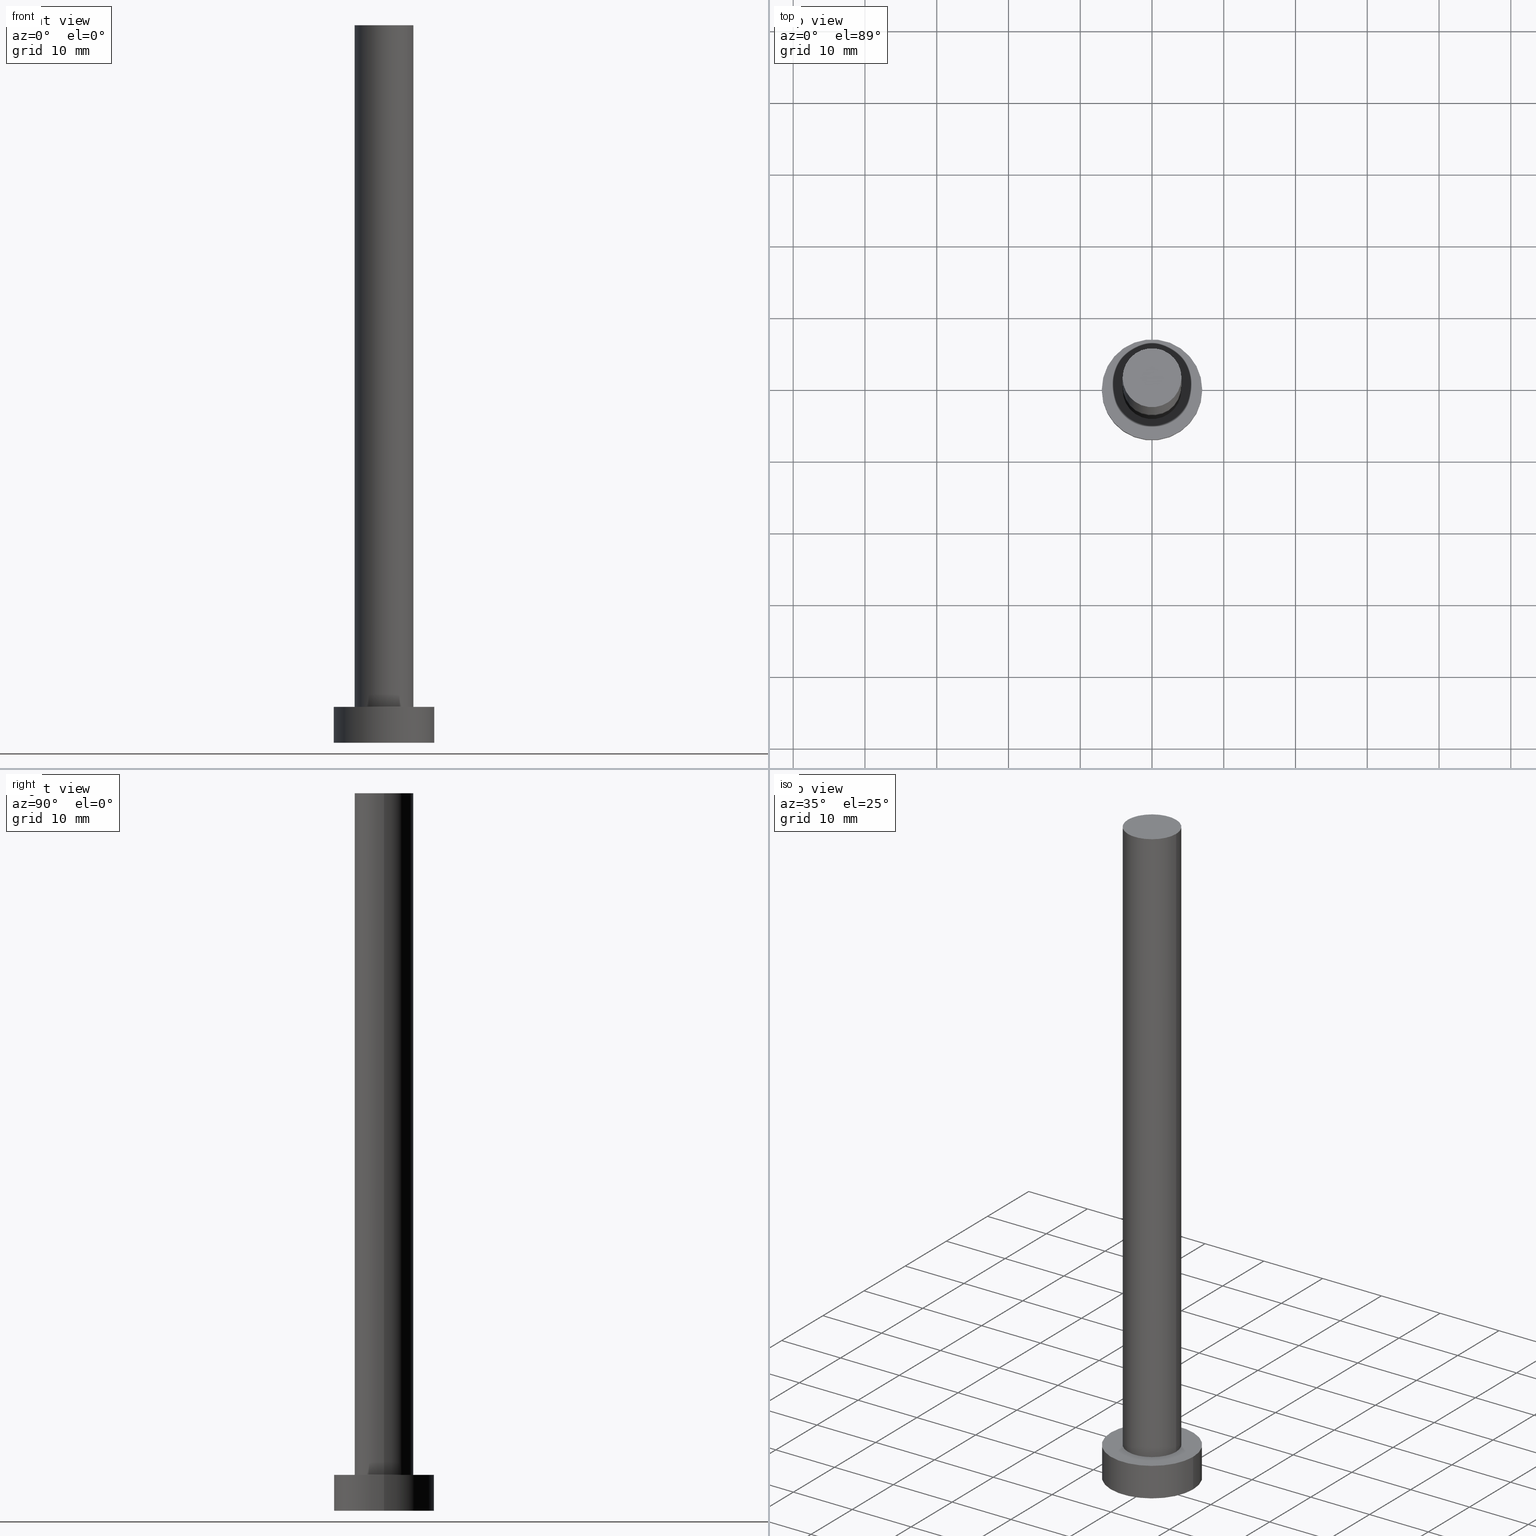
[diagram: canonical four-view strip — front | top / right | iso, engineering-drawing reading convention]
A machine part, canonical four-view strip (front | top / right | iso — engineering-drawing reading convention). The complete STEP part file that produces these views, byte-faithful:
ISO-10303-21;
HEADER;
FILE_DESCRIPTION (( 'STEP AP203' ),
    '1' );
FILE_NAME ('a311.STEP',
    '2023-02-13T14:21:59',
    ( '' ),
    ( '' ),
    'SwSTEP 2.0',
    'SolidWorks 2019',
    '' );
FILE_SCHEMA (( 'CONFIG_CONTROL_DESIGN' ));
ENDSEC;

DATA;
#1 = DIRECTION ( 'NONE',  ( 1.000000000000000000, 0.000000000000000000, 0.000000000000000000 ) ) ;
#2 = CC_DESIGN_PERSON_AND_ORGANIZATION_ASSIGNMENT ( #94, #121, ( #39 ) ) ;
#3 = SHAPE_DEFINITION_REPRESENTATION ( #150, #42 ) ;
#4 = PLANE ( 'NONE',  #255 ) ;
#5 = ORIENTED_EDGE ( 'NONE', *, *, #87, .F. ) ;
#6 = DIRECTION ( 'NONE',  ( 0.000000000000000000, 0.000000000000000000, 1.000000000000000000 ) ) ;
#7 = APPROVAL_ROLE ( '' ) ;
#8 = AXIS2_PLACEMENT_3D ( 'NONE', #223, #135, #177 ) ;
#9 = CYLINDRICAL_SURFACE ( 'NONE', #61, 7.000000000000000000 ) ;
#10 = ORIENTED_EDGE ( 'NONE', *, *, #232, .T. ) ;
#11 = APPROVAL_STATUS ( 'not_yet_approved' ) ;
#12 = DATE_AND_TIME ( #252, #33 ) ;
#13 = VERTEX_POINT ( 'NONE', #27 ) ;
#14 = VECTOR ( 'NONE', #210, 1000.000000000000000 ) ;
#15 = AXIS2_PLACEMENT_3D ( 'NONE', #142, #197, #124 ) ;
#16 = DIRECTION ( 'NONE',  ( -1.000000000000000000, 0.000000000000000000, 0.000000000000000000 ) ) ;
#17 = CC_DESIGN_APPROVAL ( #176, ( #235 ) ) ;
#18 = PLANE ( 'NONE',  #56 ) ;
#19 = ORIENTED_EDGE ( 'NONE', *, *, #72, .F. ) ;
#20 = DATE_TIME_ROLE ( 'classification_date' ) ;
#21 = COORDINATED_UNIVERSAL_TIME_OFFSET ( 1, 0, .AHEAD. ) ;
#22 = CIRCLE ( 'NONE', #125, 4.099999999999999645 ) ;
#23 = DIRECTION ( 'NONE',  ( 0.000000000000000000, 0.000000000000000000, 1.000000000000000000 ) ) ;
#24 = ORIENTED_EDGE ( 'NONE', *, *, #54, .T. ) ;
#25 = DIRECTION ( 'NONE',  ( -1.000000000000000000, 0.000000000000000000, 0.000000000000000000 ) ) ;
#26 = AXIS2_PLACEMENT_3D ( 'NONE', #138, #201, #25 ) ;
#27 = CARTESIAN_POINT ( 'NONE',  ( 4.099999999999999645, 5.021051876504147385E-16, 5.000000000000000000 ) ) ;
#28 = AXIS2_PLACEMENT_3D ( 'NONE', #182, #166, #167 ) ;
#29 = CARTESIAN_POINT ( 'NONE',  ( -7.000000000000000000, 0.000000000000000000, 5.000000000000000000 ) ) ;
#30 = APPLICATION_CONTEXT ( 'configuration controlled 3d designs of mechanical parts and assemblies' ) ;
#31 = PRODUCT_RELATED_PRODUCT_CATEGORY ( 'detail', '', ( #39 ) ) ;
#32 = ORIENTED_EDGE ( 'NONE', *, *, #108, .T. ) ;
#33 = LOCAL_TIME ( 15, 21, 59.00000000000000000, #77 ) ;
#34 = PERSON_AND_ORGANIZATION_ROLE ( 'creator' ) ;
#35 = PERSON_AND_ORGANIZATION ( #68, #229 ) ;
#36 = EDGE_LOOP ( 'NONE', ( #208, #153, #216, #10 ) ) ;
#37 = APPROVAL_STATUS ( 'not_yet_approved' ) ;
#38 = CLOSED_SHELL ( 'NONE', ( #254, #180, #183, #100, #179, #59, #225 ) ) ;
#39 = PRODUCT ( 'a311', 'a311', '', ( #88 ) ) ;
#40 = CARTESIAN_POINT ( 'NONE',  ( 0.000000000000000000, 0.000000000000000000, 5.000000000000000000 ) ) ;
#41 = CARTESIAN_POINT ( 'NONE',  ( -7.000000000000000000, 0.000000000000000000, 0.000000000000000000 ) ) ;
#42 = ADVANCED_BREP_SHAPE_REPRESENTATION ( 'a311', ( #128, #86 ), #144 ) ;
#43 = PERSON_AND_ORGANIZATION ( #68, #229 ) ;
#44 = APPROVAL_DATE_TIME ( #134, #101 ) ;
#45 = CC_DESIGN_DATE_AND_TIME_ASSIGNMENT ( #112, #178, ( #189 ) ) ;
#46 = ORIENTED_EDGE ( 'NONE', *, *, #232, .F. ) ;
#47 = CARTESIAN_POINT ( 'NONE',  ( 0.000000000000000000, 0.000000000000000000, 0.000000000000000000 ) ) ;
#48 = DIRECTION ( 'NONE',  ( 1.000000000000000000, 0.000000000000000000, -0.000000000000000000 ) ) ;
#49 = LOCAL_TIME ( 15, 21, 59.00000000000000000, #21 ) ;
#50 = CYLINDRICAL_SURFACE ( 'NONE', #212, 4.099999999999999645 ) ;
#51 = FACE_OUTER_BOUND ( 'NONE', #36, .T. ) ;
#52 = ORIENTED_EDGE ( 'NONE', *, *, #170, .T. ) ;
#53 = DIRECTION ( 'NONE',  ( 0.000000000000000000, 0.000000000000000000, 1.000000000000000000 ) ) ;
#54 = EDGE_CURVE ( 'NONE', #122, #89, #244, .T. ) ;
#55 = APPLICATION_PROTOCOL_DEFINITION ( 'international standard', 'config_control_design', 1994, #30 ) ;
#56 = AXIS2_PLACEMENT_3D ( 'NONE', #238, #160, #237 ) ;
#57 = EDGE_CURVE ( 'NONE', #222, #81, #82, .T. ) ;
#58 = ORIENTED_EDGE ( 'NONE', *, *, #152, .T. ) ;
#59 = ADVANCED_FACE ( 'NONE', ( #51 ), #50, .T. ) ;
#60 = APPROVAL_STATUS ( 'not_yet_approved' ) ;
#61 = AXIS2_PLACEMENT_3D ( 'NONE', #80, #240, #116 ) ;
#62 = CARTESIAN_POINT ( 'NONE',  ( 0.000000000000000000, 0.000000000000000000, 5.000000000000000000 ) ) ;
#63 = DIRECTION ( 'NONE',  ( -0.000000000000000000, -0.000000000000000000, -1.000000000000000000 ) ) ;
#64 = APPROVAL_DATE_TIME ( #163, #176 ) ;
#65 = CC_DESIGN_PERSON_AND_ORGANIZATION_ASSIGNMENT ( #146, #34, ( #189 ) ) ;
#66 = DIRECTION ( 'NONE',  ( 1.000000000000000000, 0.000000000000000000, 0.000000000000000000 ) ) ;
#67 = CYLINDRICAL_SURFACE ( 'NONE', #26, 7.000000000000000000 ) ;
#68 = PERSON ( 'NEUR�EN�', 'NEUR�EN�', 'NEUR�EN�', ('NEUR�EN�'), ('NEUR�EN�'), ('NEUR�EN�') ) ;
#69 = PLANE ( 'NONE',  #157 ) ;
#70 = EDGE_CURVE ( 'NONE', #89, #253, #243, .T. ) ;
#71 = APPROVAL_PERSON_ORGANIZATION ( #194, #101, #161 ) ;
#72 = EDGE_CURVE ( 'NONE', #81, #92, #224, .T. ) ;
#73 = FACE_OUTER_BOUND ( 'NONE', #155, .T. ) ;
#74 = CC_DESIGN_SECURITY_CLASSIFICATION ( #191, ( #235 ) ) ;
#75 = DIRECTION ( 'NONE',  ( 1.000000000000000000, 0.000000000000000000, -0.000000000000000000 ) ) ;
#76 = CC_DESIGN_DATE_AND_TIME_ASSIGNMENT ( #123, #20, ( #191 ) ) ;
#77 = COORDINATED_UNIVERSAL_TIME_OFFSET ( 1, 0, .AHEAD. ) ;
#78 = CC_DESIGN_APPROVAL ( #101, ( #191 ) ) ;
#79 = ORIENTED_EDGE ( 'NONE', *, *, #87, .T. ) ;
#80 = CARTESIAN_POINT ( 'NONE',  ( 0.000000000000000000, 0.000000000000000000, 5.000000000000000000 ) ) ;
#81 = VERTEX_POINT ( 'NONE', #29 ) ;
#82 = CIRCLE ( 'NONE', #228, 7.000000000000000000 ) ;
#83 = EDGE_LOOP ( 'NONE', ( #5, #230, #162, #58 ) ) ;
#84 = APPROVAL_PERSON_ORGANIZATION ( #96, #176, #7 ) ;
#85 = CARTESIAN_POINT ( 'NONE',  ( -4.099999999999999645, 0.000000000000000000, 5.000000000000000000 ) ) ;
#86 = AXIS2_PLACEMENT_3D ( 'NONE', #251, #105, #172 ) ;
#87 = EDGE_CURVE ( 'NONE', #222, #214, #102, .T. ) ;
#88 = MECHANICAL_CONTEXT ( 'NONE', #30, 'mechanical' ) ;
#89 = VERTEX_POINT ( 'NONE', #234 ) ;
#90 = EDGE_LOOP ( 'NONE', ( #113, #218 ) ) ;
#91 = EDGE_LOOP ( 'NONE', ( #52, #24 ) ) ;
#92 = VERTEX_POINT ( 'NONE', #41 ) ;
#93 = DIRECTION ( 'NONE',  ( 0.000000000000000000, 0.000000000000000000, 1.000000000000000000 ) ) ;
#94 = PERSON_AND_ORGANIZATION ( #68, #229 ) ;
#95 = ORIENTED_EDGE ( 'NONE', *, *, #70, .F. ) ;
#96 = PERSON_AND_ORGANIZATION ( #68, #229 ) ;
#97 = FACE_OUTER_BOUND ( 'NONE', #83, .T. ) ;
#98 = VECTOR ( 'NONE', #145, 1000.000000000000000 ) ;
#99 = AXIS2_PLACEMENT_3D ( 'NONE', #109, #159, #66 ) ;
#100 = ADVANCED_FACE ( 'NONE', ( #168, #106 ), #18, .T. ) ;
#101 = APPROVAL ( #60, 'NEUR�EN�' ) ;
#102 = LINE ( 'NONE', #184, #14 ) ;
#103 = CARTESIAN_POINT ( 'NONE',  ( 0.000000000000000000, 0.000000000000000000, 100.0000000000000000 ) ) ;
#104 = ORIENTED_EDGE ( 'NONE', *, *, #108, .F. ) ;
#105 = DIRECTION ( 'NONE',  ( 0.000000000000000000, 0.000000000000000000, 1.000000000000000000 ) ) ;
#106 = FACE_OUTER_BOUND ( 'NONE', #90, .T. ) ;
#107 =( LENGTH_UNIT ( ) NAMED_UNIT ( * ) SI_UNIT ( .MILLI., .METRE. ) );
#108 = EDGE_CURVE ( 'NONE', #214, #92, #213, .T. ) ;
#109 = CARTESIAN_POINT ( 'NONE',  ( 0.000000000000000000, 0.000000000000000000, 5.000000000000000000 ) ) ;
#110 = DIRECTION ( 'NONE',  ( -0.000000000000000000, -0.000000000000000000, -1.000000000000000000 ) ) ;
#111 = VECTOR ( 'NONE', #63, 1000.000000000000000 ) ;
#112 = DATE_AND_TIME ( #211, #205 ) ;
#113 = ORIENTED_EDGE ( 'NONE', *, *, #188, .T. ) ;
#114 =( NAMED_UNIT ( * ) SI_UNIT ( $, .STERADIAN. ) SOLID_ANGLE_UNIT ( ) );
#115 = CALENDAR_DATE ( 2023, 13, 2 ) ;
#116 = DIRECTION ( 'NONE',  ( -1.000000000000000000, 0.000000000000000000, 0.000000000000000000 ) ) ;
#117 = ORIENTED_EDGE ( 'NONE', *, *, #192, .T. ) ;
#118 = VECTOR ( 'NONE', #206, 1000.000000000000000 ) ;
#119 = CIRCLE ( 'NONE', #15, 7.000000000000000000 ) ;
#120 = DIRECTION ( 'NONE',  ( 0.000000000000000000, 0.000000000000000000, 1.000000000000000000 ) ) ;
#121 = PERSON_AND_ORGANIZATION_ROLE ( 'design_owner' ) ;
#122 = VERTEX_POINT ( 'NONE', #140 ) ;
#123 = DATE_AND_TIME ( #219, #49 ) ;
#124 = DIRECTION ( 'NONE',  ( 1.000000000000000000, 0.000000000000000000, 0.000000000000000000 ) ) ;
#125 = AXIS2_PLACEMENT_3D ( 'NONE', #40, #23, #126 ) ;
#126 = DIRECTION ( 'NONE',  ( 1.000000000000000000, 0.000000000000000000, 0.000000000000000000 ) ) ;
#127 = APPROVAL ( #37, 'NEUR�EN�' ) ;
#128 = MANIFOLD_SOLID_BREP ( 'P�idat vysunut�m3', #38 ) ;
#129 = AXIS2_PLACEMENT_3D ( 'NONE', #193, #93, #1 ) ;
#130 = CARTESIAN_POINT ( 'NONE',  ( 0.000000000000000000, 0.000000000000000000, 100.0000000000000000 ) ) ;
#131 = CC_DESIGN_PERSON_AND_ORGANIZATION_ASSIGNMENT ( #239, #220, ( #235 ) ) ;
#132 = FACE_OUTER_BOUND ( 'NONE', #91, .T. ) ;
#133 = AXIS2_PLACEMENT_3D ( 'NONE', #130, #110, #16 ) ;
#134 = DATE_AND_TIME ( #236, #185 ) ;
#135 = DIRECTION ( 'NONE',  ( 0.000000000000000000, 0.000000000000000000, 1.000000000000000000 ) ) ;
#136 = PERSON_AND_ORGANIZATION ( #68, #229 ) ;
#137 = CARTESIAN_POINT ( 'NONE',  ( 0.000000000000000000, 0.000000000000000000, 100.0000000000000000 ) ) ;
#138 = CARTESIAN_POINT ( 'NONE',  ( 0.000000000000000000, 0.000000000000000000, 5.000000000000000000 ) ) ;
#139 = PERSON_AND_ORGANIZATION_ROLE ( 'creator' ) ;
#140 = CARTESIAN_POINT ( 'NONE',  ( 4.099999999999999645, 5.021051876504147385E-16, 100.0000000000000000 ) ) ;
#141 = EDGE_LOOP ( 'NONE', ( #241, #104 ) ) ;
#142 = CARTESIAN_POINT ( 'NONE',  ( 0.000000000000000000, 0.000000000000000000, 0.000000000000000000 ) ) ;
#143 = CC_DESIGN_PERSON_AND_ORGANIZATION_ASSIGNMENT ( #136, #139, ( #235 ) ) ;
#144 =( GEOMETRIC_REPRESENTATION_CONTEXT ( 3 ) GLOBAL_UNCERTAINTY_ASSIGNED_CONTEXT ( ( #147 ) ) GLOBAL_UNIT_ASSIGNED_CONTEXT ( ( #107, #231, #114 ) ) REPRESENTATION_CONTEXT ( 'NONE', 'WORKASPACE' ) );
#145 = DIRECTION ( 'NONE',  ( -0.000000000000000000, -0.000000000000000000, -1.000000000000000000 ) ) ;
#146 = PERSON_AND_ORGANIZATION ( #68, #229 ) ;
#147 = UNCERTAINTY_MEASURE_WITH_UNIT (LENGTH_MEASURE( 1.000000000000000082E-05 ), #107, 'distance_accuracy_value', 'NONE');
#148 = CARTESIAN_POINT ( 'NONE',  ( 0.000000000000000000, 0.000000000000000000, 5.000000000000000000 ) ) ;
#149 = APPLICATION_CONTEXT ( 'configuration controlled 3d designs of mechanical parts and assemblies' ) ;
#150 = PRODUCT_DEFINITION_SHAPE ( 'NONE', 'NONE',  #189 ) ;
#151 = CIRCLE ( 'NONE', #129, 4.099999999999999645 ) ;
#152 = EDGE_CURVE ( 'NONE', #92, #214, #119, .T. ) ;
#153 = ORIENTED_EDGE ( 'NONE', *, *, #170, .F. ) ;
#154 = LINE ( 'NONE', #174, #111 ) ;
#155 = EDGE_LOOP ( 'NONE', ( #156, #117, #171, #95 ) ) ;
#156 = ORIENTED_EDGE ( 'NONE', *, *, #54, .F. ) ;
#157 = AXIS2_PLACEMENT_3D ( 'NONE', #47, #6, #48 ) ;
#158 = COORDINATED_UNIVERSAL_TIME_OFFSET ( 1, 0, .AHEAD. ) ;
#159 = DIRECTION ( 'NONE',  ( 0.000000000000000000, 0.000000000000000000, 1.000000000000000000 ) ) ;
#160 = DIRECTION ( 'NONE',  ( 0.000000000000000000, 0.000000000000000000, 1.000000000000000000 ) ) ;
#161 = APPROVAL_ROLE ( '' ) ;
#162 = ORIENTED_EDGE ( 'NONE', *, *, #72, .T. ) ;
#163 = DATE_AND_TIME ( #115, #250 ) ;
#164 = DIRECTION ( 'NONE',  ( -0.000000000000000000, -0.000000000000000000, -1.000000000000000000 ) ) ;
#165 = CC_DESIGN_APPROVAL ( #127, ( #189 ) ) ;
#166 = DIRECTION ( 'NONE',  ( 0.000000000000000000, 0.000000000000000000, 1.000000000000000000 ) ) ;
#167 = DIRECTION ( 'NONE',  ( 1.000000000000000000, 0.000000000000000000, 0.000000000000000000 ) ) ;
#168 = FACE_BOUND ( 'NONE', #186, .T. ) ;
#169 = APPROVAL_DATE_TIME ( #12, #127 ) ;
#170 = EDGE_CURVE ( 'NONE', #89, #122, #151, .T. ) ;
#171 = ORIENTED_EDGE ( 'NONE', *, *, #247, .T. ) ;
#172 = DIRECTION ( 'NONE',  ( 1.000000000000000000, 0.000000000000000000, 0.000000000000000000 ) ) ;
#173 = CIRCLE ( 'NONE', #245, 4.099999999999999645 ) ;
#174 = CARTESIAN_POINT ( 'NONE',  ( 4.099999999999999645, 5.021051876504147385E-16, 100.0000000000000000 ) ) ;
#175 = COORDINATED_UNIVERSAL_TIME_OFFSET ( 1, 0, .AHEAD. ) ;
#176 = APPROVAL ( #11, 'NEUR�EN�' ) ;
#177 = DIRECTION ( 'NONE',  ( 1.000000000000000000, 0.000000000000000000, 0.000000000000000000 ) ) ;
#178 = DATE_TIME_ROLE ( 'creation_date' ) ;
#179 = ADVANCED_FACE ( 'NONE', ( #221 ), #69, .F. ) ;
#180 = ADVANCED_FACE ( 'NONE', ( #203 ), #67, .T. ) ;
#181 = CC_DESIGN_PERSON_AND_ORGANIZATION_ASSIGNMENT ( #43, #195, ( #191 ) ) ;
#182 = CARTESIAN_POINT ( 'NONE',  ( 0.000000000000000000, 0.000000000000000000, 100.0000000000000000 ) ) ;
#183 = ADVANCED_FACE ( 'NONE', ( #97 ), #9, .T. ) ;
#184 = CARTESIAN_POINT ( 'NONE',  ( 7.000000000000000000, 8.572527594031473190E-16, 5.000000000000000000 ) ) ;
#185 = LOCAL_TIME ( 15, 21, 59.00000000000000000, #158 ) ;
#186 = EDGE_LOOP ( 'NONE', ( #46, #248 ) ) ;
#187 = DIRECTION ( 'NONE',  ( 1.000000000000000000, 0.000000000000000000, 0.000000000000000000 ) ) ;
#188 = EDGE_CURVE ( 'NONE', #81, #222, #227, .T. ) ;
#189 = PRODUCT_DEFINITION ( 'NEZN�M�', '', #235, #246 ) ;
#190 = APPROVAL_ROLE ( '' ) ;
#191 = SECURITY_CLASSIFICATION ( '', '', #217 ) ;
#192 = EDGE_CURVE ( 'NONE', #122, #13, #154, .T. ) ;
#193 = CARTESIAN_POINT ( 'NONE',  ( 0.000000000000000000, 0.000000000000000000, 100.0000000000000000 ) ) ;
#194 = PERSON_AND_ORGANIZATION ( #68, #229 ) ;
#195 = PERSON_AND_ORGANIZATION_ROLE ( 'classification_officer' ) ;
#196 = CARTESIAN_POINT ( 'NONE',  ( 7.000000000000000000, 8.572527594031473190E-16, 0.000000000000000000 ) ) ;
#197 = DIRECTION ( 'NONE',  ( 0.000000000000000000, 0.000000000000000000, 1.000000000000000000 ) ) ;
#198 = APPROVAL_PERSON_ORGANIZATION ( #35, #127, #190 ) ;
#199 = APPLICATION_PROTOCOL_DEFINITION ( 'international standard', 'config_control_design', 1994, #149 ) ;
#200 = DIRECTION ( 'NONE',  ( 0.000000000000000000, 0.000000000000000000, 1.000000000000000000 ) ) ;
#201 = DIRECTION ( 'NONE',  ( -0.000000000000000000, -0.000000000000000000, -1.000000000000000000 ) ) ;
#202 = ORIENTED_EDGE ( 'NONE', *, *, #57, .F. ) ;
#203 = FACE_OUTER_BOUND ( 'NONE', #204, .T. ) ;
#204 = EDGE_LOOP ( 'NONE', ( #202, #79, #32, #19 ) ) ;
#205 = LOCAL_TIME ( 15, 21, 59.00000000000000000, #209 ) ;
#206 = DIRECTION ( 'NONE',  ( -0.000000000000000000, -0.000000000000000000, -1.000000000000000000 ) ) ;
#207 = CARTESIAN_POINT ( 'NONE',  ( -7.000000000000000000, 0.000000000000000000, 5.000000000000000000 ) ) ;
#208 = ORIENTED_EDGE ( 'NONE', *, *, #192, .F. ) ;
#209 = COORDINATED_UNIVERSAL_TIME_OFFSET ( 1, 0, .AHEAD. ) ;
#210 = DIRECTION ( 'NONE',  ( -0.000000000000000000, -0.000000000000000000, -1.000000000000000000 ) ) ;
#211 = CALENDAR_DATE ( 2023, 13, 2 ) ;
#212 = AXIS2_PLACEMENT_3D ( 'NONE', #103, #164, #242 ) ;
#213 = CIRCLE ( 'NONE', #8, 7.000000000000000000 ) ;
#214 = VERTEX_POINT ( 'NONE', #196 ) ;
#215 = DIRECTION ( 'NONE',  ( 1.000000000000000000, 0.000000000000000000, 0.000000000000000000 ) ) ;
#216 = ORIENTED_EDGE ( 'NONE', *, *, #70, .T. ) ;
#217 = SECURITY_CLASSIFICATION_LEVEL ( 'unclassified' ) ;
#218 = ORIENTED_EDGE ( 'NONE', *, *, #57, .T. ) ;
#219 = CALENDAR_DATE ( 2023, 13, 2 ) ;
#220 = PERSON_AND_ORGANIZATION_ROLE ( 'design_supplier' ) ;
#221 = FACE_OUTER_BOUND ( 'NONE', #141, .T. ) ;
#222 = VERTEX_POINT ( 'NONE', #233 ) ;
#223 = CARTESIAN_POINT ( 'NONE',  ( 0.000000000000000000, 0.000000000000000000, 0.000000000000000000 ) ) ;
#224 = LINE ( 'NONE', #207, #118 ) ;
#225 = ADVANCED_FACE ( 'NONE', ( #132 ), #4, .T. ) ;
#226 = CARTESIAN_POINT ( 'NONE',  ( -4.099999999999999645, 0.000000000000000000, 100.0000000000000000 ) ) ;
#227 = CIRCLE ( 'NONE', #99, 7.000000000000000000 ) ;
#228 = AXIS2_PLACEMENT_3D ( 'NONE', #148, #53, #187 ) ;
#229 = ORGANIZATION ( 'NEUR�EN�', 'NEUR�EN�', '' ) ;
#230 = ORIENTED_EDGE ( 'NONE', *, *, #188, .F. ) ;
#231 =( NAMED_UNIT ( * ) PLANE_ANGLE_UNIT ( ) SI_UNIT ( $, .RADIAN. ) );
#232 = EDGE_CURVE ( 'NONE', #253, #13, #173, .T. ) ;
#233 = CARTESIAN_POINT ( 'NONE',  ( 7.000000000000000000, 8.572527594031473190E-16, 5.000000000000000000 ) ) ;
#234 = CARTESIAN_POINT ( 'NONE',  ( -4.099999999999999645, 0.000000000000000000, 100.0000000000000000 ) ) ;
#235 = PRODUCT_DEFINITION_FORMATION_WITH_SPECIFIED_SOURCE ( 'LIBOVOLN�', '', #39, .NOT_KNOWN. ) ;
#236 = CALENDAR_DATE ( 2023, 13, 2 ) ;
#237 = DIRECTION ( 'NONE',  ( 1.000000000000000000, 0.000000000000000000, -0.000000000000000000 ) ) ;
#238 = CARTESIAN_POINT ( 'NONE',  ( 0.000000000000000000, 0.000000000000000000, 5.000000000000000000 ) ) ;
#239 = PERSON_AND_ORGANIZATION ( #68, #229 ) ;
#240 = DIRECTION ( 'NONE',  ( -0.000000000000000000, -0.000000000000000000, -1.000000000000000000 ) ) ;
#241 = ORIENTED_EDGE ( 'NONE', *, *, #152, .F. ) ;
#242 = DIRECTION ( 'NONE',  ( -1.000000000000000000, 0.000000000000000000, 0.000000000000000000 ) ) ;
#243 = LINE ( 'NONE', #226, #98 ) ;
#244 = CIRCLE ( 'NONE', #28, 4.099999999999999645 ) ;
#245 = AXIS2_PLACEMENT_3D ( 'NONE', #62, #200, #215 ) ;
#246 = DESIGN_CONTEXT ( 'detailed design', #149, 'design' ) ;
#247 = EDGE_CURVE ( 'NONE', #13, #253, #22, .T. ) ;
#248 = ORIENTED_EDGE ( 'NONE', *, *, #247, .F. ) ;
#249 = CYLINDRICAL_SURFACE ( 'NONE', #133, 4.099999999999999645 ) ;
#250 = LOCAL_TIME ( 15, 21, 59.00000000000000000, #175 ) ;
#251 = CARTESIAN_POINT ( 'NONE',  ( 0.000000000000000000, 0.000000000000000000, 0.000000000000000000 ) ) ;
#252 = CALENDAR_DATE ( 2023, 13, 2 ) ;
#253 = VERTEX_POINT ( 'NONE', #85 ) ;
#254 = ADVANCED_FACE ( 'NONE', ( #73 ), #249, .T. ) ;
#255 = AXIS2_PLACEMENT_3D ( 'NONE', #137, #120, #75 ) ;
ENDSEC;
END-ISO-10303-21;
